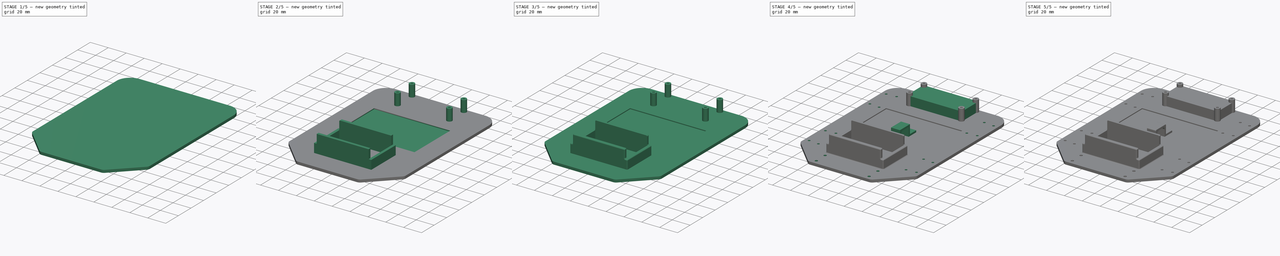
[diagram: build sequence overview — one tinted view per stage of 5, left to right]
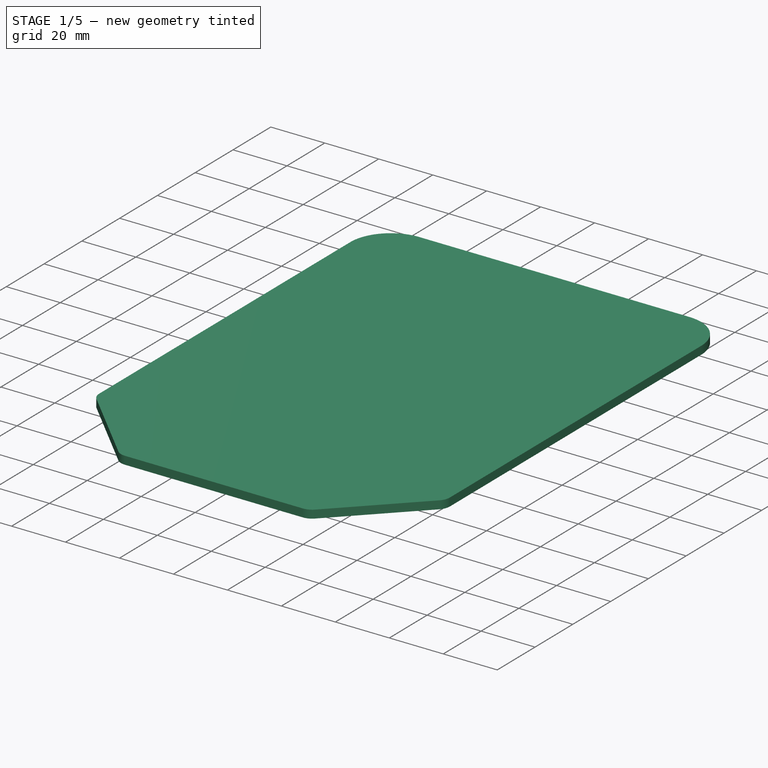
[diagram: stage 1 of 5 — iso view after this stage's code; geometry added in this stage tinted green]
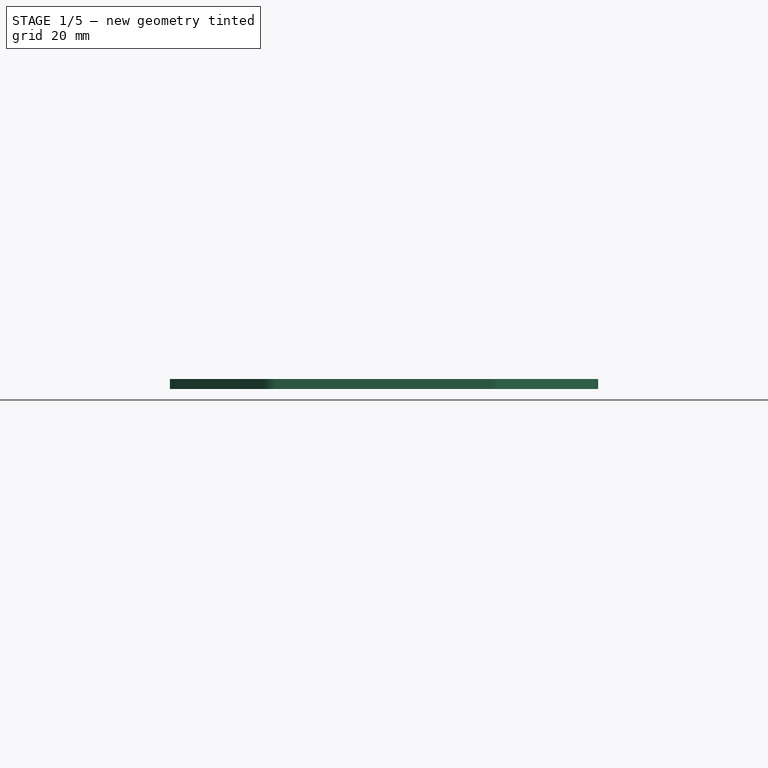
[diagram: stage 1 of 5 — front view after this stage's code; geometry added in this stage tinted green]
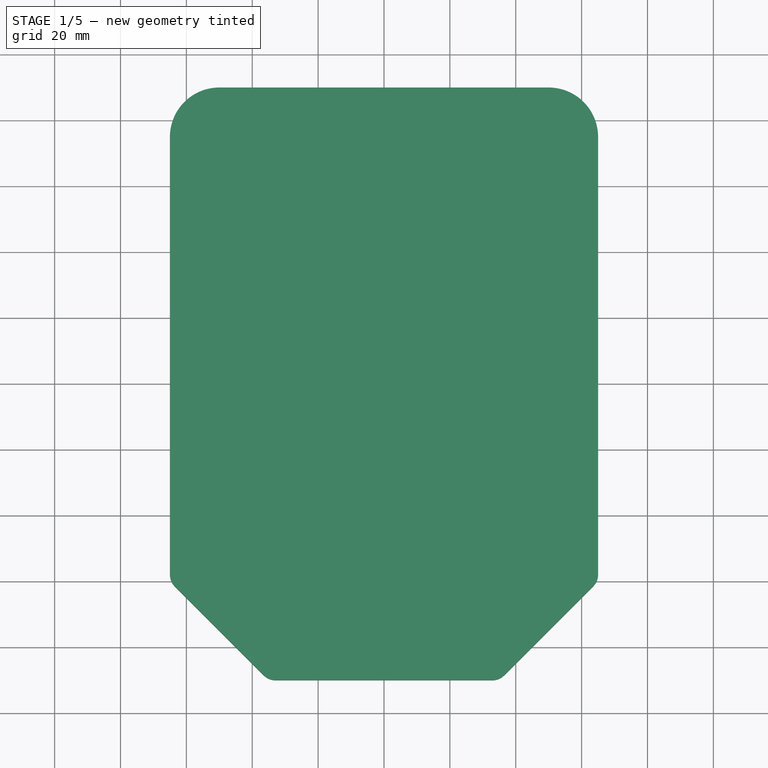
[diagram: stage 1 of 5 — top view after this stage's code; geometry added in this stage tinted green]
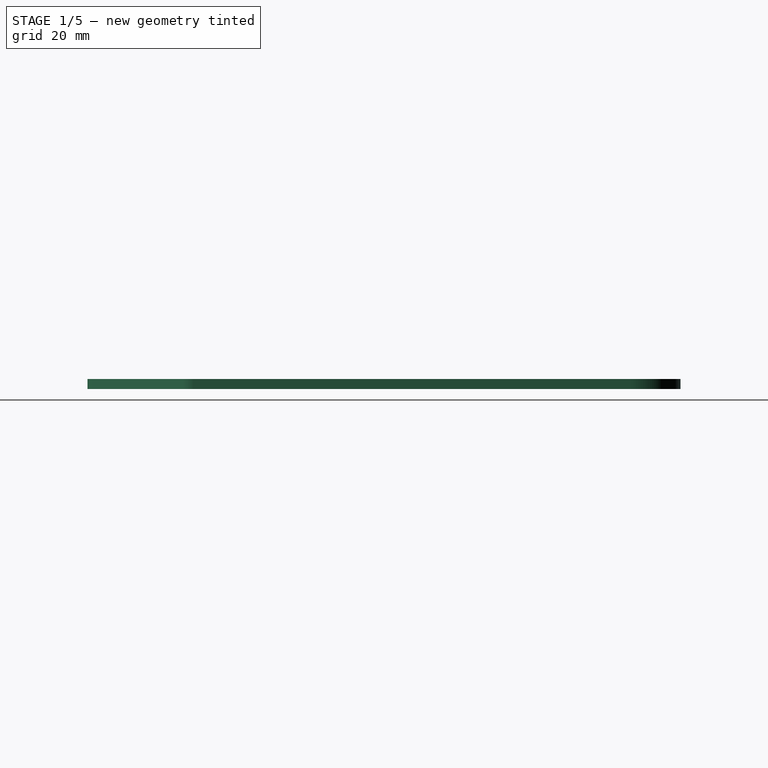
[diagram: stage 1 of 5 — right view after this stage's code; geometry added in this stage tinted green]
FCSTD DOCUMENT  (FreeCAD 0.18R4 (GitTag))
Label: mecanum-robot-base019
License: All rights reserved
LicenseURL: http://en.wikipedia.org/wiki/All_rights_reserved
objects: PartDesign::Fillet×26, Sketcher::SketchObject×14, PartDesign::Pocket×8, PartDesign::Pad×6, PartDesign::Body×3, PartDesign::Chamfer×2, PartDesign::FeatureBase×1
note: 74 computed .brp shape members not serialized (recipe doc carries the construction recipe); baked Part::Feature solids carry a one-line shape summary decoded from their .brp

FEATURE [Sketcher::SketchObject] Sketch
  MapMode = 5
  Support = -> [XY_Plane]
  sketch-geometry (4):
    g0: LineSegment StartX=-65 StartY=90 StartZ=0 EndX=65 EndY=90 EndZ=0
    g1: LineSegment StartX=65 StartY=90 StartZ=0 EndX=65 EndY=-90 EndZ=0
    g2: LineSegment StartX=65 StartY=-90 StartZ=0 EndX=-65 EndY=-90 EndZ=0
    g3: LineSegment StartX=-65 StartY=-90 StartZ=0 EndX=-65 EndY=90 EndZ=0
  constraints (10):
    c: Coincident(g0,g1)
    c: Coincident(g1,g2)
    c: Coincident(g2,g3)
    c: Coincident(g3,g0)
    c: Horizontal(g2)
    c: Vertical(g3)
    c: DistanceX(g0,g0) = 130
    c: DistanceY(g3,g3) = 180
    c: Symmetric(g0,g0,g-2)
    c: Symmetric(g0,g1,g-1)
FEATURE [PartDesign::Pad] Pad
  Length = 3
  Length2 = 100
  Profile = -> Sketch
  Type = 0
FEATURE [PartDesign::Chamfer] Chamfer
  Base = -> Pad [Edge5]
  BaseFeature = -> Pad
  Size = 30
FEATURE [PartDesign::Chamfer] Chamfer001
  Base = -> Chamfer [Edge15]
  BaseFeature = -> Chamfer
  Size = 30
FEATURE [PartDesign::Fillet] Fillet
  Base = -> Chamfer001 [Edge12]
  BaseFeature = -> Chamfer001
  Radius = 5
FEATURE [PartDesign::Fillet] Fillet001
  Base = -> Fillet [Edge9]
  BaseFeature = -> Fillet
  Radius = 5
FEATURE [PartDesign::Fillet] Fillet002
  Base = -> Fillet001 [Edge16]
  BaseFeature = -> Fillet001
  Radius = 5
FEATURE [PartDesign::Fillet] Fillet003
  Base = -> Fillet002 [Edge17]
  BaseFeature = -> Fillet002
  Radius = 5
FEATURE [PartDesign::Fillet] Fillet004
  Base = -> Fillet003 [Edge18]
  BaseFeature = -> Fillet003
  Radius = 15
FEATURE [PartDesign::Fillet] Fillet005
  Base = -> Fillet004 [Edge19]
  BaseFeature = -> Fillet004
  Radius = 15
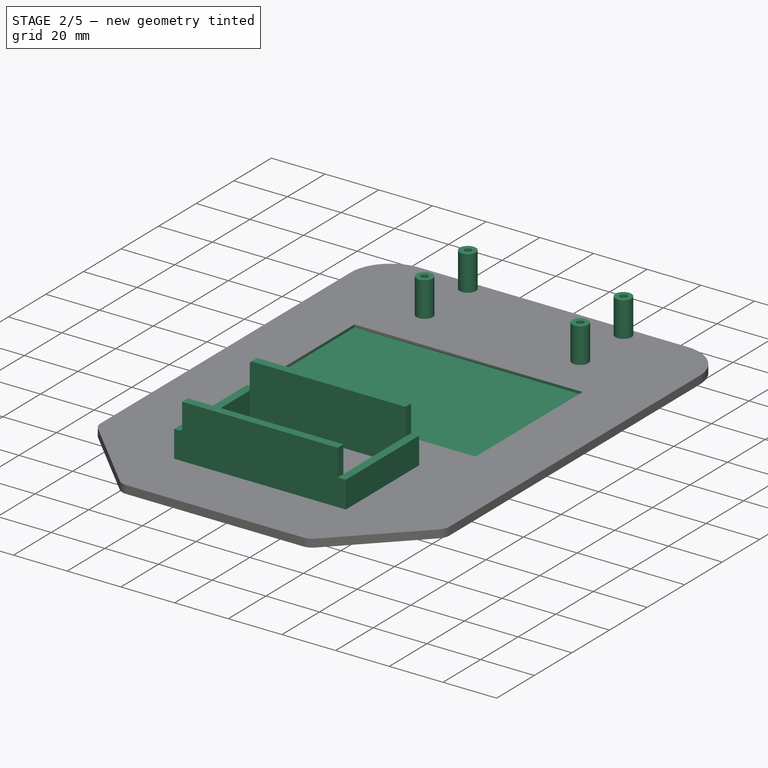
[diagram: stage 2 of 5 — iso view after this stage's code; geometry added in this stage tinted green]
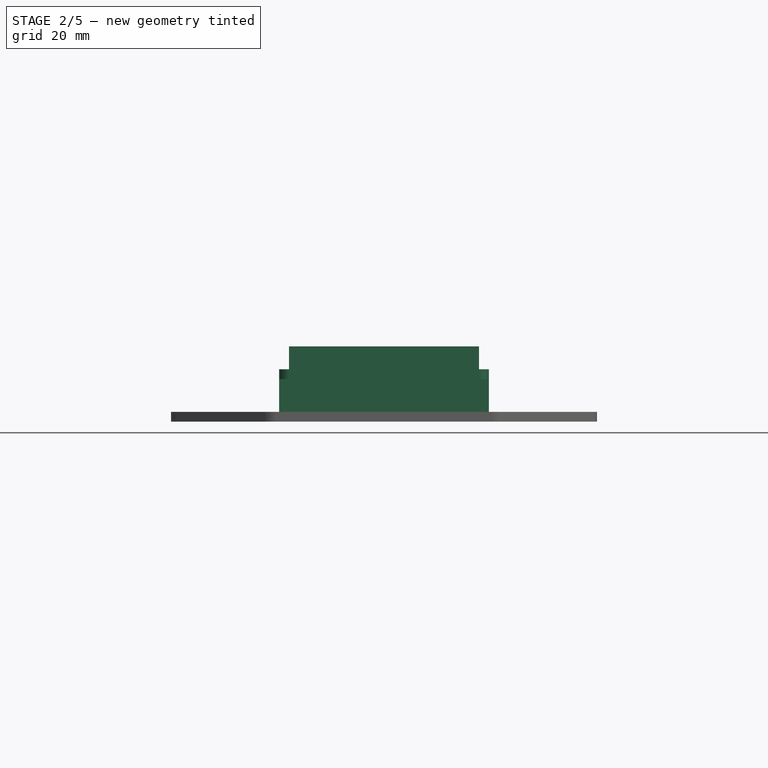
[diagram: stage 2 of 5 — front view after this stage's code; geometry added in this stage tinted green]
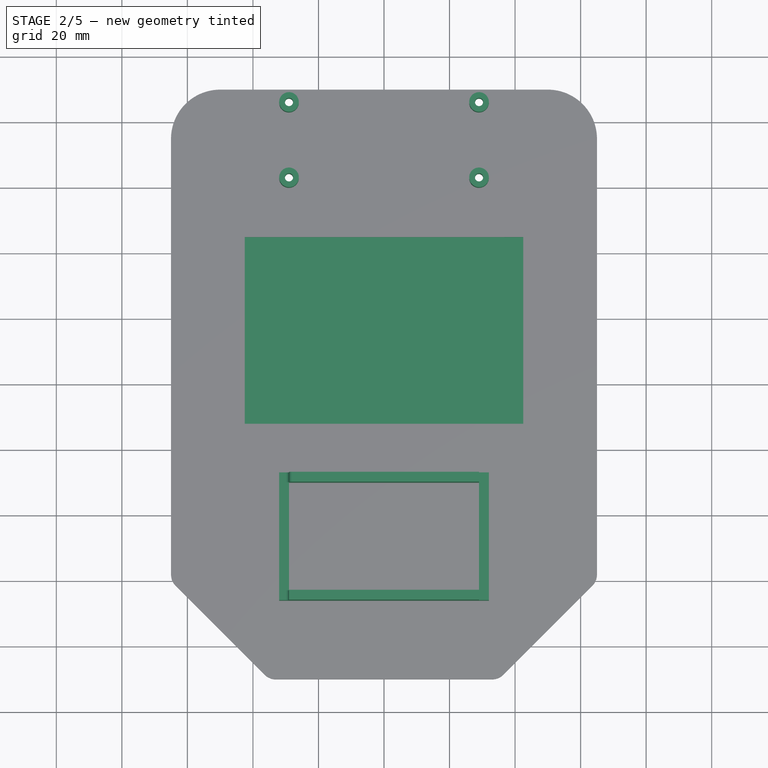
[diagram: stage 2 of 5 — top view after this stage's code; geometry added in this stage tinted green]
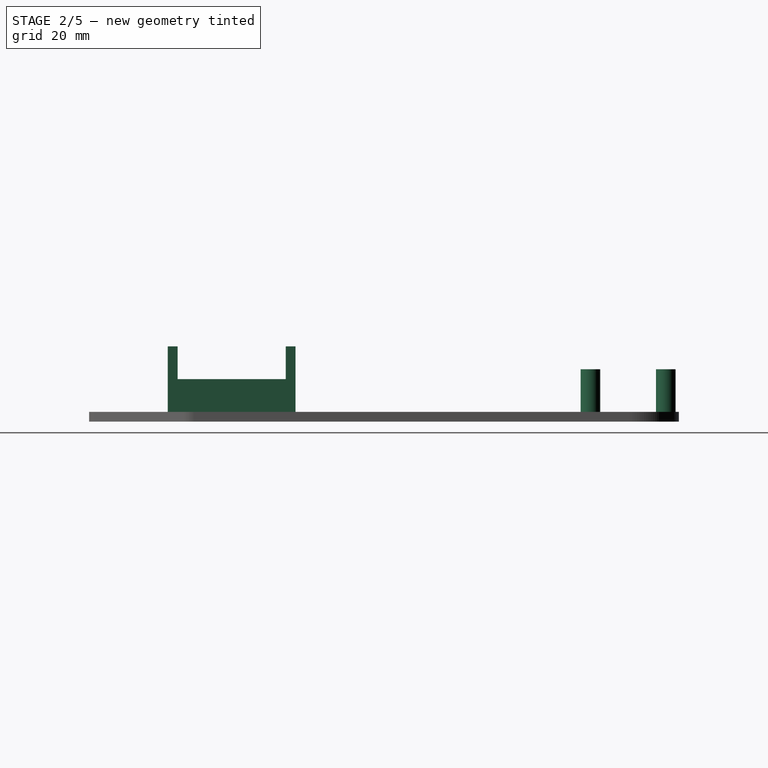
[diagram: stage 2 of 5 — right view after this stage's code; geometry added in this stage tinted green]
FEATURE [PartDesign::Body] Body003  label="Inner Bracket"
  Group = -> [Pad002,Fillet010,Fillet011,Fillet012,Sketch002,Pocket001]
  Origin = -> Origin003
  Placement = pos=(-54.6769,-34.7311,0) rot=(0,0,1;0rad)
  Tip = -> Pocket001
FEATURE [Sketcher::SketchObject] Sketch003  label="PiZero Stands"
  ExternalGeometry = -> [Fillet005]
  MapMode = 5
  Placement = pos=(0,0,3) rot=(0,0,1;0rad)
  Support = -> [Fillet005]
  sketch-geometry (4):
    g0: Circle CenterX=-29 CenterY=86 CenterZ=0 NormalX=0 NormalY=0 NormalZ=1 AngleXU=0 Radius=3
    g1: Circle CenterX=29 CenterY=86 CenterZ=0 NormalX=0 NormalY=0 NormalZ=1 AngleXU=0 Radius=3
    g2: Circle CenterX=-29 CenterY=63 CenterZ=0 NormalX=0 NormalY=0 NormalZ=1 AngleXU=0 Radius=3
    g3: Circle CenterX=29 CenterY=63 CenterZ=0 NormalX=0 NormalY=0 NormalZ=1 AngleXU=0 Radius=3
  constraints (11):
    c: Radius(g0) = 3
    c: Radius(g1) = 3
    c: Radius(g2) = 3
    c: Radius(g3) = 3
    c: DistanceX(g0,g1) = 58
    c: DistanceX(g2,g0) = 0
    c: DistanceX(g1,g3) = 0
    c: DistanceY(g3,g1) = 23
    c: DistanceY(g3,g2) = 0
    c: Symmetric(g0,g1,g-2)
    c: DistanceY(g0,g-3) = 4
FEATURE [PartDesign::Pad] Pad003  label="PAD - Pi Zero"
  BaseFeature = -> Fillet005
  Length = 13
  Length2 = 100
  Profile = -> Sketch003
  Type = 0
FEATURE [Sketcher::SketchObject] Sketch004  label="PiZero Holes"
  ExternalGeometry = -> [Pad003]
  MapMode = 5
  Placement = pos=(0,0,16) rot=(0,0,1;0rad)
  Support = -> [Pad003]
  sketch-geometry (4):
    g0: Circle CenterX=-29 CenterY=86 CenterZ=0 NormalX=0 NormalY=0 NormalZ=1 AngleXU=0 Radius=1.25
    g1: Circle CenterX=29 CenterY=86 CenterZ=0 NormalX=0 NormalY=0 NormalZ=1 AngleXU=0 Radius=1.25
    g2: Circle CenterX=29 CenterY=63 CenterZ=0 NormalX=0 NormalY=0 NormalZ=1 AngleXU=0 Radius=1.25
    g3: Circle CenterX=-29 CenterY=63 CenterZ=0 NormalX=0 NormalY=0 NormalZ=1 AngleXU=0 Radius=1.25
  constraints (11):
    c: Radius(g0) = 1.25
    c: Radius(g1) = 1.25
    c: Radius(g3) = 1.25
    c: Radius(g2) = 1.25
    c: DistanceY(g0,g-3) = 4
    c: DistanceX(g0,g1) = 58
    c: Symmetric(g1,g0,g-2)
    c: DistanceY(g2,g1) = 23
    c: DistanceX(g3,g0) = 0
    c: DistanceY(g2,g3) = 0
    c: DistanceX(g2,g1) = 0
FEATURE [PartDesign::Pocket] Pocket002
  BaseFeature = -> Pad003
  Length = 5
  Length2 = 100
  Profile = -> Sketch004
  Type = 1
FEATURE [Sketcher::SketchObject] Sketch005  label="Breadboard"
  ExternalGeometry = -> [Pocket002]
  MapMode = 5
  Placement = pos=(0,0,3) rot=(0,0,1;0rad)
  Support = -> [Pocket002]
  sketch-geometry (4):
    g0: LineSegment StartX=-42.5 StartY=45 StartZ=0 EndX=42.5 EndY=45 EndZ=0
    g1: LineSegment StartX=42.5 StartY=45 StartZ=0 EndX=42.5 EndY=-12 EndZ=0
    g2: LineSegment StartX=42.5 StartY=-12 StartZ=0 EndX=-42.5 EndY=-12 EndZ=0
    g3: LineSegment StartX=-42.5 StartY=-12 StartZ=0 EndX=-42.5 EndY=45 EndZ=0
  constraints (11):
    c: Coincident(g0,g1)
    c: Coincident(g1,g2)
    c: Coincident(g2,g3)
    c: Coincident(g3,g0)
    c: Horizontal(g2)
    c: Vertical(g1)
    c: Vertical(g3)
    c: Symmetric(g0,g0,g-2)
    c: DistanceY(g0,g-3) = 45
    c: DistanceY(g2,g0) = 57
    c: DistanceX(g0,g0) = 85
FEATURE [PartDesign::Pocket] Pocket003
  BaseFeature = -> Pocket002
  Length = 1
  Length2 = 100
  Profile = -> Sketch005
  Type = 0
FEATURE [Sketcher::SketchObject] Sketch006  label="battery walls large"
  ExternalGeometry = -> [Pocket003]
  MapMode = 5
  Placement = pos=(0,0,3) rot=(0,0,1;0rad)
  Support = -> [Pocket003]
  sketch-geometry (8):
    g0: LineSegment StartX=-29 StartY=-27 StartZ=0 EndX=29 EndY=-27 EndZ=0
    g1: LineSegment StartX=29 StartY=-27 StartZ=0 EndX=29 EndY=-30 EndZ=0
    g2: LineSegment StartX=29 StartY=-30 StartZ=0 EndX=-29 EndY=-30 EndZ=0
    g3: LineSegment StartX=-29 StartY=-30 StartZ=0 EndX=-29 EndY=-27 EndZ=0
    g4: LineSegment StartX=-29 StartY=-66 StartZ=0 EndX=29 EndY=-66 EndZ=0
    g5: LineSegment StartX=29 StartY=-66 StartZ=0 EndX=29 EndY=-63 EndZ=0
    g6: LineSegment StartX=29 StartY=-63 StartZ=0 EndX=-29 EndY=-63 EndZ=0
    g7: LineSegment StartX=-29 StartY=-63 StartZ=0 EndX=-29 EndY=-66 EndZ=0
  constraints (23):
    c: Coincident(g0,g1)
    c: Coincident(g1,g2)
    c: Coincident(g2,g3)
    c: Coincident(g3,g0)
    c: Horizontal(g2)
    c: Vertical(g1)
    c: Vertical(g3)
    c: Symmetric(g0,g0,g-2)
    c: DistanceY(g1,g0) = 3
    c: DistanceY(g0,g-3) = 15
    c: DistanceX(g2,g2) = 58
    c: Coincident(g4,g5)
    c: Coincident(g5,g6)
    c: Coincident(g6,g7)
    c: Coincident(g7,g4)
    c: Horizontal(g4)
    c: Horizontal(g6)
    c: Vertical(g5)
    c: Vertical(g7)
    c: DistanceX(g4,g2) = 0
    c: DistanceY(g6,g2) = 33
    c: DistanceY(g4,g5) = 3
    c: DistanceX(g1,g5) = 0
FEATURE [PartDesign::Pad] Pad004
  BaseFeature = -> Pocket003
  Length = 20
  Length2 = 100
  Profile = -> Sketch006
  Type = 0
FEATURE [Sketcher::SketchObject] Sketch007  label="battery walls ends"
  ExternalGeometry = -> [Pad004]
  MapMode = 5
  Placement = pos=(0,0,3) rot=(0,0,1;0rad)
  Support = -> [Pad004]
  sketch-geometry (8):
    g0: LineSegment StartX=29 StartY=-27 StartZ=0 EndX=32 EndY=-27 EndZ=0
    g1: LineSegment StartX=32 StartY=-27 StartZ=0 EndX=32 EndY=-66 EndZ=0
    g2: LineSegment StartX=32 StartY=-66 StartZ=0 EndX=29 EndY=-66 EndZ=0
    g3: LineSegment StartX=29 StartY=-66 StartZ=0 EndX=29 EndY=-27 EndZ=0
    g4: LineSegment StartX=-29 StartY=-27 StartZ=0 EndX=-32 EndY=-27 EndZ=0
    g5: LineSegment StartX=-32 StartY=-27 StartZ=0 EndX=-32 EndY=-66 EndZ=0
    g6: LineSegment StartX=-32 StartY=-66 StartZ=0 EndX=-29 EndY=-66 EndZ=0
    g7: LineSegment StartX=-29 StartY=-66 StartZ=0 EndX=-29 EndY=-27 EndZ=0
  constraints (20):
    c: Coincident(g0,g1)
    c: Coincident(g1,g2)
    c: Coincident(g2,g3)
    c: Coincident(g3,g0)
    c: Horizontal(g0)
    c: Horizontal(g2)
    c: Vertical(g1)
    c: Coincident(g4,g5)
    c: Coincident(g5,g6)
    c: Coincident(g6,g7)
    c: Coincident(g7,g4)
    c: Horizontal(g4)
    c: Horizontal(g6)
    c: Vertical(g5)
    c: Coincident(g4,g-3)
    c: Coincident(g-4,g6)
    c: Coincident(g-3,g0)
    c: Coincident(g-4,g2)
    c: DistanceX(g5,g6) = 3
    c: DistanceX(g2,g2) = 3
FEATURE [PartDesign::Pad] Pad005
  BaseFeature = -> Pad004
  Length = 10
  Length2 = 100
  Profile = -> Sketch007
  Type = 0
FEATURE [PartDesign::Fillet] Fillet013
  Base = -> Pad005 [Edge101]
  BaseFeature = -> Pad005
  Radius = 1
FEATURE [PartDesign::Fillet] Fillet014
  Base = -> Fillet013 [Edge56]
  BaseFeature = -> Fillet013
  Radius = 1
FEATURE [PartDesign::Fillet] Fillet015
  Base = -> Fillet014 [Edge75]
  BaseFeature = -> Fillet014
  Radius = 1
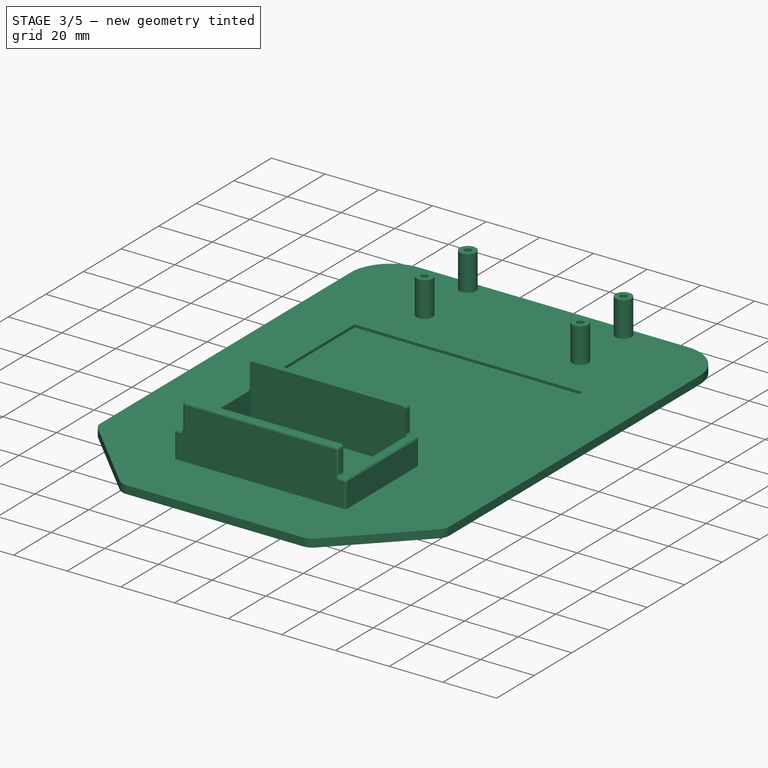
[diagram: stage 3 of 5 — iso view after this stage's code; geometry added in this stage tinted green]
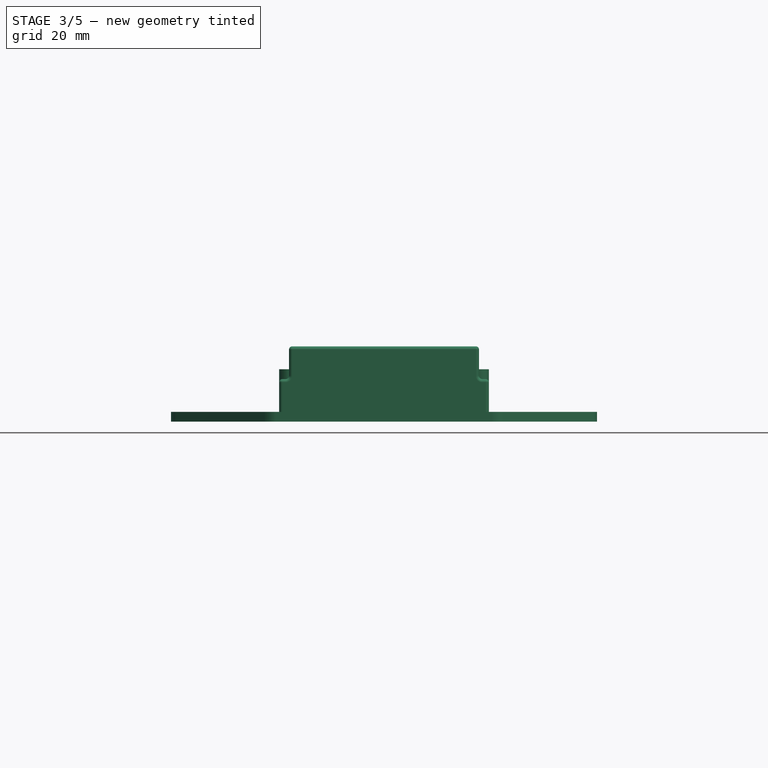
[diagram: stage 3 of 5 — front view after this stage's code; geometry added in this stage tinted green]
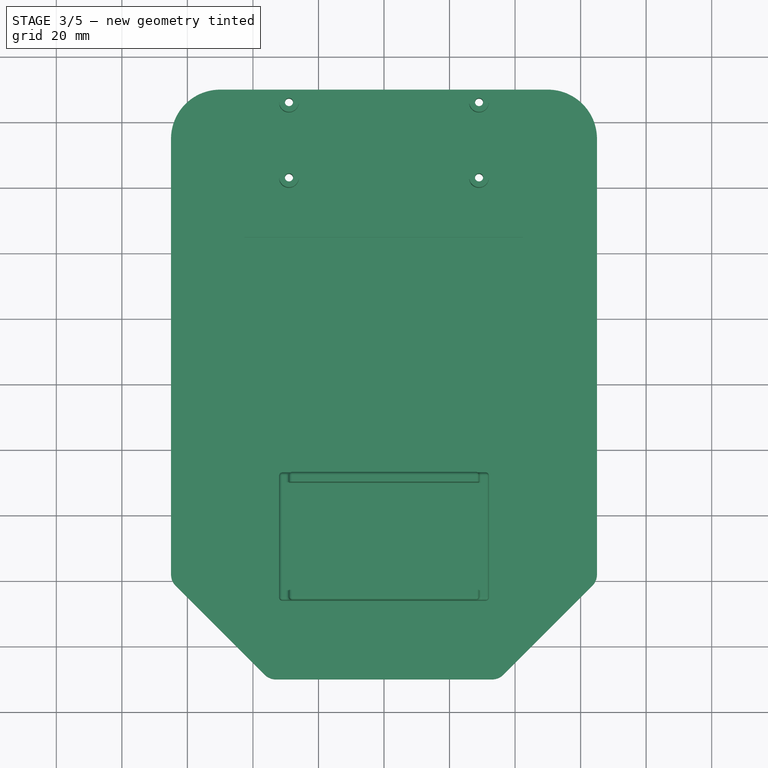
[diagram: stage 3 of 5 — top view after this stage's code; geometry added in this stage tinted green]
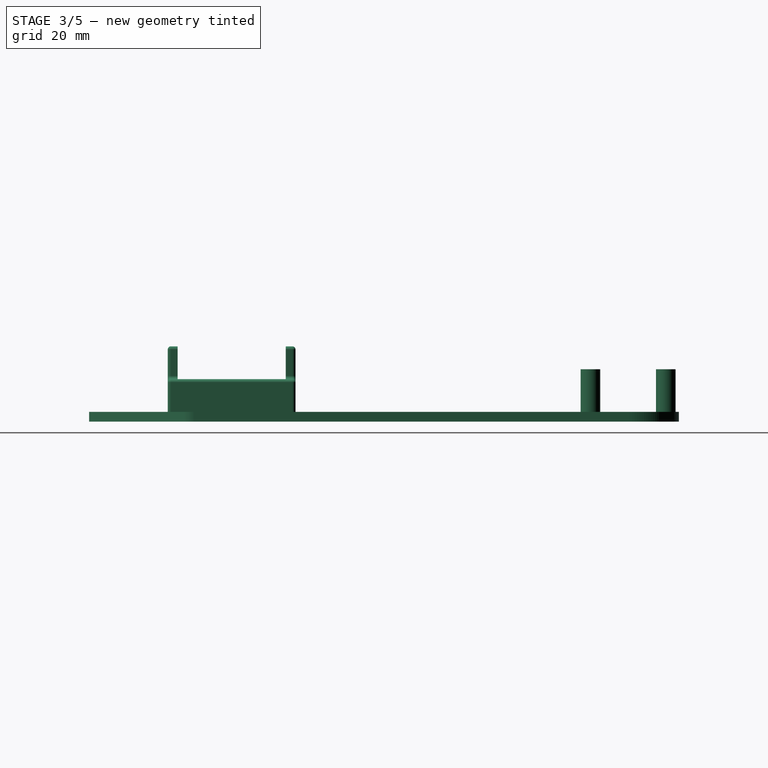
[diagram: stage 3 of 5 — right view after this stage's code; geometry added in this stage tinted green]
FEATURE [PartDesign::Fillet] Fillet016
  Base = -> Fillet015 [Edge83]
  BaseFeature = -> Fillet015
  Radius = 1
FEATURE [PartDesign::Fillet] Fillet017
  Base = -> Fillet016 [Edge20]
  BaseFeature = -> Fillet016
  Radius = 1
FEATURE [PartDesign::Fillet] Fillet018
  Base = -> Fillet017 [Edge20]
  BaseFeature = -> Fillet017
  Radius = 1
FEATURE [PartDesign::Fillet] Fillet019
  Base = -> Fillet018 [Edge16]
  BaseFeature = -> Fillet018
  Radius = 1
FEATURE [PartDesign::Fillet] Fillet020
  Base = -> Fillet019 [Edge81]
  BaseFeature = -> Fillet019
  Radius = 1
FEATURE [PartDesign::Fillet] Fillet021
  Base = -> Fillet020 [Edge24]
  BaseFeature = -> Fillet020
  Radius = 1
FEATURE [PartDesign::Fillet] Fillet022
  Base = -> Fillet021 [Edge3]
  BaseFeature = -> Fillet021
  Radius = 1
FEATURE [PartDesign::Fillet] Fillet023
  Base = -> Fillet022 [Edge80]
  BaseFeature = -> Fillet022
  Radius = 1
FEATURE [PartDesign::Fillet] Fillet024
  Base = -> Fillet023 [Edge55]
  BaseFeature = -> Fillet023
  Radius = 1
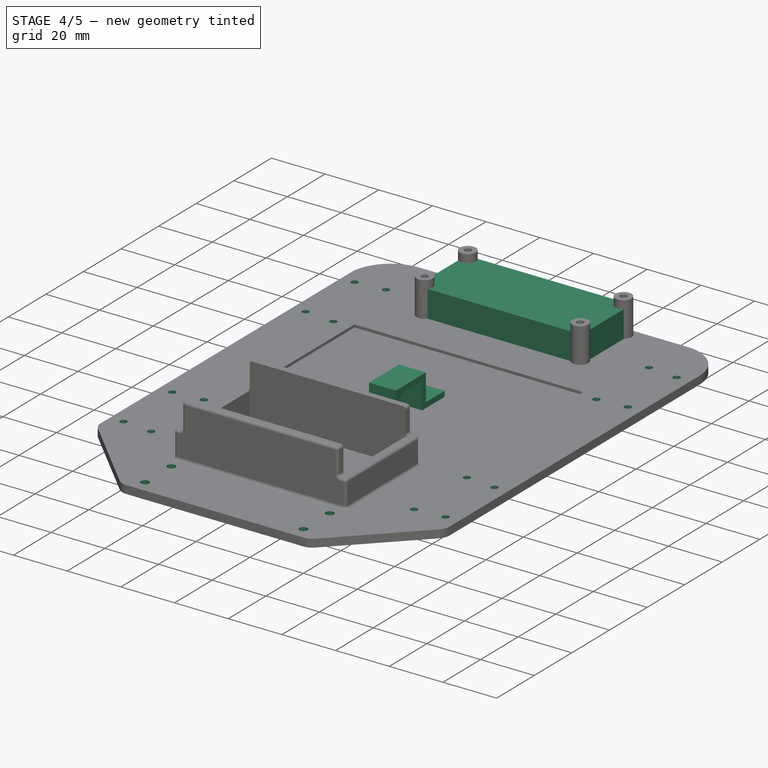
[diagram: stage 4 of 5 — iso view after this stage's code; geometry added in this stage tinted green]
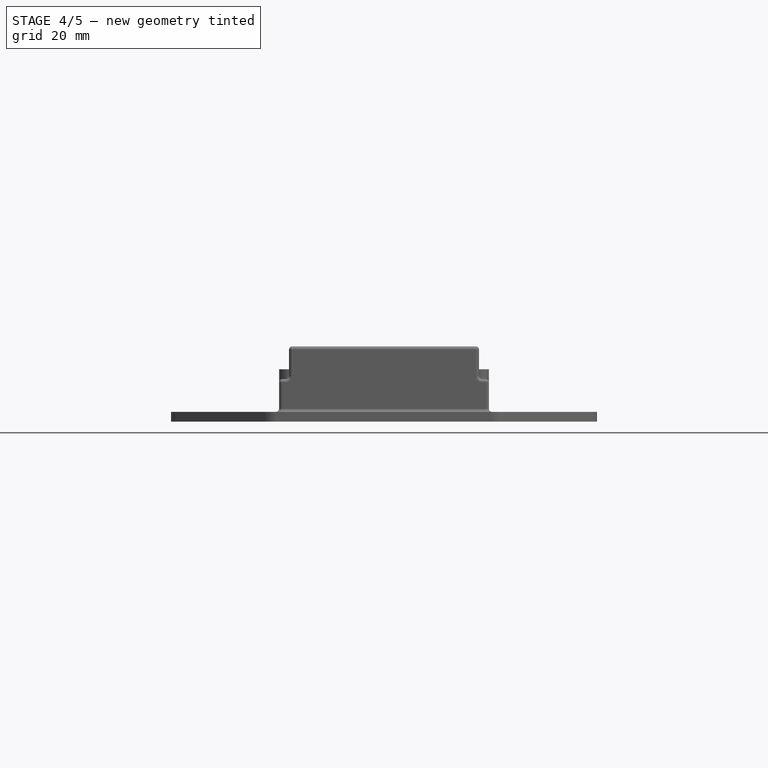
[diagram: stage 4 of 5 — front view after this stage's code; geometry added in this stage tinted green]
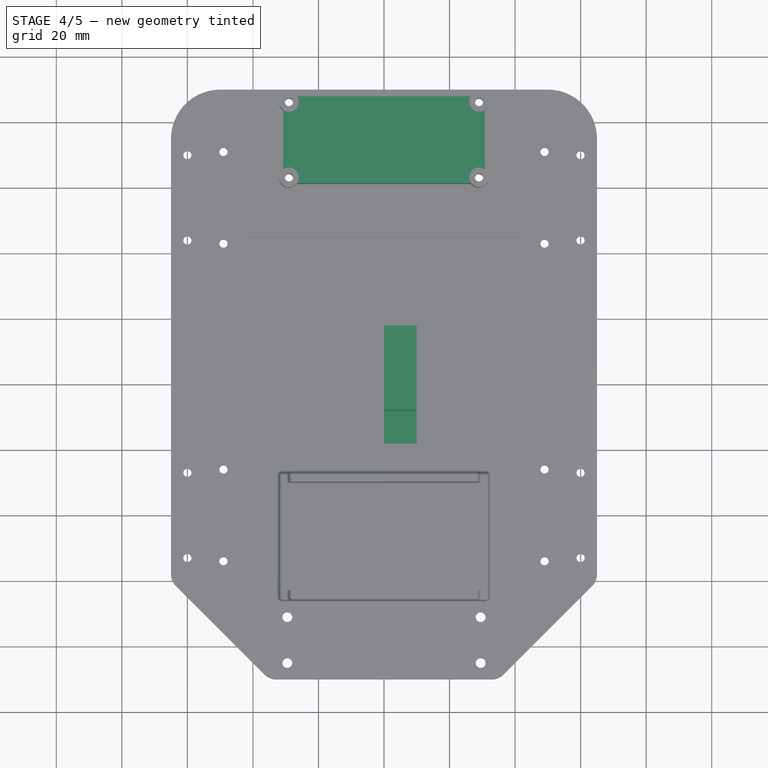
[diagram: stage 4 of 5 — top view after this stage's code; geometry added in this stage tinted green]
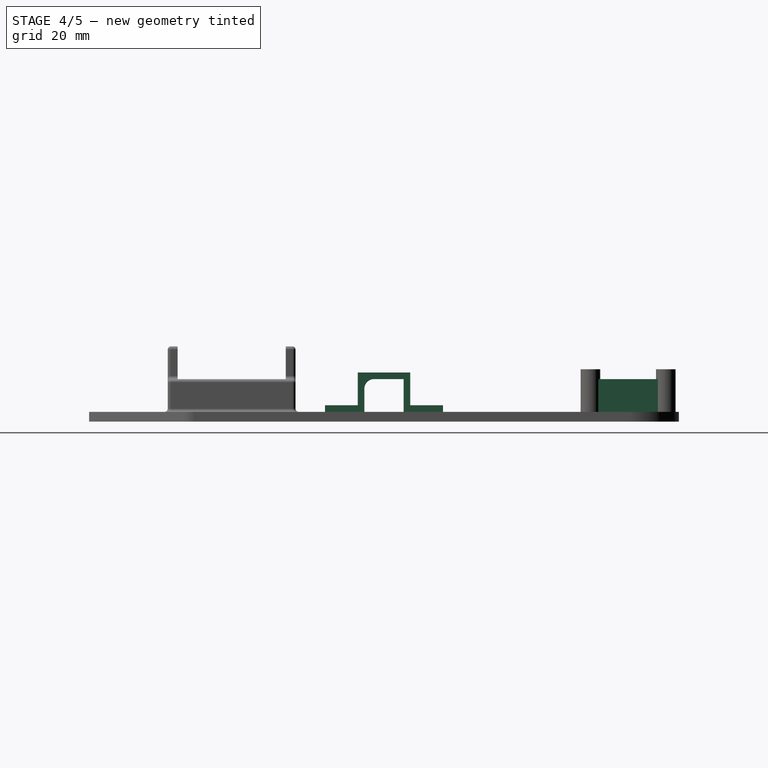
[diagram: stage 4 of 5 — right view after this stage's code; geometry added in this stage tinted green]
FEATURE [Sketcher::SketchObject] CopyCopySketch004
  Placement = pos=(0,0,0) rot=(0.57735,0.57735,0.57735;2.0944rad)
  sketch-geometry (12):
    g0: LineSegment StartX=-6 StartY=3 StartZ=0 EndX=-6 EndY=13 EndZ=0
    g1: LineSegment StartX=-6 StartY=13 StartZ=0 EndX=6 EndY=13 EndZ=0
    g2: LineSegment StartX=6 StartY=13 StartZ=0 EndX=6 EndY=3 EndZ=0
    g3: LineSegment StartX=6 StartY=3 StartZ=0 EndX=18 EndY=3 EndZ=0
    g4: LineSegment StartX=8 StartY=5 StartZ=0 EndX=8 EndY=15 EndZ=0
    g5: LineSegment StartX=8 StartY=15 StartZ=0 EndX=-8 EndY=15 EndZ=0
    g6: LineSegment StartX=-8 StartY=15 StartZ=0 EndX=-8 EndY=5 EndZ=0
    g7: LineSegment StartX=-18 StartY=3 StartZ=0 EndX=-6 EndY=3 EndZ=0
    g8: LineSegment StartX=18 StartY=3 StartZ=0 EndX=18 EndY=5 EndZ=0
    g9: LineSegment StartX=18 StartY=5 StartZ=0 EndX=8 EndY=5 EndZ=0
    g10: LineSegment StartX=-8 StartY=5 StartZ=0 EndX=-18 EndY=5 EndZ=0
    g11: LineSegment StartX=-18 StartY=5 StartZ=0 EndX=-18 EndY=3 EndZ=0
  constraints (34):
    c: Coincident(g0,g1)
    c: Coincident(g1,g2)
    c: Coincident(g2,g3)
    c: Coincident(g4,g5)
    c: Coincident(g5,g6)
    c: Coincident(g0,g7)
    c: Horizontal(g7)
    c: Horizontal(g3)
    c: Symmetric(g0,g2,g-2)
    c: Vertical(g2)
    c: Vertical(g0)
    c: Vertical(g6)
    c: Vertical(g4)
    c: Symmetric(g5,g4,g-2)
    c: Horizontal(g1)
    c: Coincident(g8,g9)
    c: Coincident(g10,g11)
    c: Coincident(g7,g11)
    c: Coincident(g3,g8)
    c: DistanceY(g-1,g0) = 3
    c: Vertical(g11)
    c: DistanceX(g1,g1) = 12
    c: DistanceX(g1,g4) = 2
    c: DistanceY(g1,g4) = 2
    c: Coincident(g10,g6)
    c: Coincident(g4,g9)
    c: Equal(g10,g9)
    c: DistanceY(g7,g10) = 2
    c: Vertical(g8)
    c: DistanceY(g3,g8) = 2
    c: Horizontal(g9)
    c: DistanceX(g9,g9) = 10
    c: DistanceY(g0,g0) = 10
    c: Horizontal(g10)
FEATURE [PartDesign::Pad] Pad002
  Length = 10
  Length2 = 100
  Placement = pos=(0,0,0) rot=(0.57735,0.57735,0.57735;2.0944rad)
  Profile = -> CopyCopySketch004
  Type = 0
FEATURE [PartDesign::Fillet] Fillet010
  Base = -> Pad002 [Edge2]
  BaseFeature = -> Pad002
  Placement = pos=(0,0,0) rot=(0.57735,0.57735,0.57735;2.0944rad)
  Radius = 3
FEATURE [PartDesign::Fillet] Fillet025
  Base = -> Fillet024 [Edge53]
  BaseFeature = -> Fillet024
  Radius = 1
FEATURE [Sketcher::SketchObject] Sketch008  label="Motor connector holes"
  ExternalGeometry = -> [Fillet025]
  MapMode = 5
  Placement = pos=(0,0,3) rot=(0,0,1;0rad)
  Support = -> [Fillet025]
  sketch-geometry (16):
    g0: Circle CenterX=-60 CenterY=-52.9289 CenterZ=0 NormalX=0 NormalY=0 NormalZ=1 AngleXU=0 Radius=1.25
    g1: Circle CenterX=-49 CenterY=-53.9289 CenterZ=0 NormalX=0 NormalY=0 NormalZ=1 AngleXU=0 Radius=1.25
    g2: Circle CenterX=-60 CenterY=-26.9289 CenterZ=0 NormalX=0 NormalY=0 NormalZ=1 AngleXU=0 Radius=1.25
    g3: Circle CenterX=-49 CenterY=-25.9289 CenterZ=0 NormalX=0 NormalY=0 NormalZ=1 AngleXU=0 Radius=1.25
    g4: Circle CenterX=60 CenterY=-52.9289 CenterZ=0 NormalX=0 NormalY=0 NormalZ=1 AngleXU=0 Radius=1.25
    g5: Circle CenterX=49 CenterY=-53.9289 CenterZ=0 NormalX=0 NormalY=0 NormalZ=1 AngleXU=0 Radius=1.25
    g6: Circle CenterX=60 CenterY=-26.9289 CenterZ=0 NormalX=0 NormalY=0 NormalZ=1 AngleXU=0 Radius=1.25
    g7: Circle CenterX=49 CenterY=-25.9289 CenterZ=0 NormalX=0 NormalY=0 NormalZ=1 AngleXU=0 Radius=1.25
    g8: Circle CenterX=-60 CenterY=70 CenterZ=0 NormalX=0 NormalY=0 NormalZ=1 AngleXU=0 Radius=1.25
    g9: Circle CenterX=-49 CenterY=71 CenterZ=0 NormalX=0 NormalY=0 NormalZ=1 AngleXU=0 Radius=1.25
    g10: Circle CenterX=-49 CenterY=43 CenterZ=0 NormalX=0 NormalY=0 NormalZ=1 AngleXU=0 Radius=1.25
    g11: Circle CenterX=-60 CenterY=44 CenterZ=0 NormalX=0 NormalY=0 NormalZ=1 AngleXU=0 Radius=1.25
    g12: Circle CenterX=60 CenterY=70 CenterZ=0 NormalX=0 NormalY=0 NormalZ=1 AngleXU=0 Radius=1
    g13: Circle CenterX=60 CenterY=44 CenterZ=0 NormalX=0 NormalY=0 NormalZ=1 AngleXU=0 Radius=1
    g14: Circle CenterX=49 CenterY=71 CenterZ=0 NormalX=0 NormalY=0 NormalZ=1 AngleXU=0 Radius=1.25
    g15: Circle CenterX=49 CenterY=43 CenterZ=0 NormalX=0 NormalY=0 NormalZ=1 AngleXU=0 Radius=1
  constraints (48):
    c: Radius(g2) = 1.25
    c: Radius(g0) = 1.25
    c: Radius(g1) = 1.25
    c: Radius(g3) = 1.25
    c: DistanceX(g-3,g0) = 5
    c: DistanceY(g-3,g0) = 5
    c: DistanceX(g0,g1) = 11
    c: DistanceY(g-3,g1) = 4
    c: DistanceY(g1,g3) = 28
    c: DistanceX(g3,g1) = 0
    c: DistanceX(g2,g0) = 0
    c: DistanceY(g0,g2) = 26
    c: Radius(g6) = 1.25
    c: Radius(g7) = 1.25
    c: Radius(g5) = 1.25
    c: Radius(g4) = 1.25
    c: DistanceX(g4,g-4) = 5
    c: DistanceY(g-4,g4) = 5
    c: DistanceX(g6,g4) = 0
    c: DistanceY(g4,g6) = 26
    c: DistanceY(g5,g7) = 28
    c: DistanceY(g5,g-4) = -4
    c: DistanceX(g7,g5) = 0
    c: DistanceX(g7,g6) = 11
    c: Radius(g8) = 1.25
    c: Radius(g9) = 1.25
    c: Radius(g11) = 1.25
    c: Radius(g10) = 1.25
    c: DistanceY(g8,g-3) = 5
    c: DistanceY(g9,g-3) = 4
    c: DistanceX(g-3,g8) = 5
    c: DistanceX(g8,g9) = 11
    c: DistanceX(g8,g11) = 0
    c: DistanceX(g9,g10) = 0
    c: DistanceY(g11,g8) = 26
    c: DistanceY(g10,g9) = 28
    c: Radius(g12) = 1
    c: Radius(g13) = 1
    c: Radius(g15) = 1
    c: Radius(g14) = 1.25
    c: DistanceY(g12,g-4) = 5
    c: DistanceY(g14,g-4) = 4
    c: DistanceX(g12,g-4) = 5
    c: DistanceX(g14,g12) = 11
    c: DistanceX(g13,g12) = 0
    c: DistanceX(g15,g14) = 0
    c: DistanceY(g13,g12) = 26
    c: DistanceY(g15,g14) = 28
FEATURE [PartDesign::Pocket] Pocket004
  BaseFeature = -> Fillet025
  Length = 5
  Length2 = 100
  Profile = -> Sketch008
  Type = 1
FEATURE [Sketcher::SketchObject] Sketch009  label="sensor"
  ExternalGeometry = -> [Pocket004]
  MapMode = 5
  Placement = pos=(0,0,3) rot=(0,0,1;0rad)
  Support = -> [Pocket004]
  sketch-geometry (4):
    g0: Circle CenterX=29.5 CenterY=-71 CenterZ=0 NormalX=0 NormalY=0 NormalZ=1 AngleXU=0 Radius=1.5
    g1: Circle CenterX=-29.5 CenterY=-71 CenterZ=0 NormalX=0 NormalY=0 NormalZ=1 AngleXU=0 Radius=1.5
    g2: Circle CenterX=-29.5 CenterY=-85 CenterZ=0 NormalX=0 NormalY=0 NormalZ=1 AngleXU=0 Radius=1.5
    g3: Circle CenterX=29.5 CenterY=-85 CenterZ=0 NormalX=0 NormalY=0 NormalZ=1 AngleXU=0 Radius=1.5
  constraints (11):
    c: DistanceX(g1,g0) = 59
    c: Symmetric(g1,g0,g-2)
    c: Radius(g0) = 1.5
    c: Radius(g1) = 1.5
    c: DistanceY(g-3,g0) = 19
    c: Radius(g3) = 1.5
    c: Radius(g2) = 1.5
    c: DistanceX(g0,g3) = 0
    c: DistanceX(g2,g1) = 0
    c: DistanceY(g-3,g3) = 5
    c: DistanceY(g3,g2) = 0
FEATURE [PartDesign::Pocket] Pocket005
  BaseFeature = -> Pocket004
  Length = 5
  Length2 = 100
  Profile = -> Sketch009
  Type = 1
FEATURE [Sketcher::SketchObject] Sketch010  label="support under pi"
  ExternalGeometry = -> [Pocket005]
  MapMode = 5
  Placement = pos=(0,0,3) rot=(0,0,1;0rad)
  Support = -> [Pocket005]
  sketch-geometry (4):
    g0: LineSegment StartX=30.8 StartY=87.8 StartZ=0 EndX=-30.8 EndY=87.8 EndZ=0
    g1: LineSegment StartX=-30.8 StartY=87.8 StartZ=0 EndX=-30.8 EndY=61.2 EndZ=0
    g2: LineSegment StartX=-30.8 StartY=61.2 StartZ=0 EndX=30.8 EndY=61.2 EndZ=0
    g3: LineSegment StartX=30.8 StartY=61.2 StartZ=0 EndX=30.8 EndY=87.8 EndZ=0
  constraints (12):
    c: Coincident(g0,g1)
    c: Coincident(g1,g2)
    c: Coincident(g2,g3)
    c: Coincident(g3,g0)
    c: Horizontal(g0)
    c: Horizontal(g2)
    c: Vertical(g1)
    c: Vertical(g3)
    c: DistanceX(g0,g-4) = -1.8
    c: DistanceX(g-5,g0) = -1.8
    c: DistanceY(g0,g-4) = -1.8
    c: DistanceY(g-3,g2) = -1.8
FEATURE [PartDesign::Pad] Pad006
  BaseFeature = -> Pocket005
  Length = 10
  Length2 = 100
  Profile = -> Sketch010
  Type = 0
FEATURE [Sketcher::SketchObject] Sketch011  label="pi drill holes 2"
  ExternalGeometry = -> [Pad006]
  MapMode = 5
  Placement = pos=(0,0,16) rot=(0,0,1;0rad)
  Support = -> [Pad006]
  sketch-geometry (4):
    g0: Circle CenterX=-29 CenterY=86 CenterZ=0 NormalX=0 NormalY=0 NormalZ=1 AngleXU=0 Radius=1.25
    g1: Circle CenterX=29 CenterY=86 CenterZ=0 NormalX=0 NormalY=0 NormalZ=1 AngleXU=0 Radius=1.25
    g2: Circle CenterX=29 CenterY=63 CenterZ=0 NormalX=0 NormalY=0 NormalZ=1 AngleXU=0 Radius=1.25
    g3: Circle CenterX=-29 CenterY=63 CenterZ=0 NormalX=0 NormalY=0 NormalZ=1 AngleXU=0 Radius=1.25
  constraints (8):
    c: Radius(g0) = 1.25
    c: Radius(g3) = 1.25
    c: Radius(g1) = 1.25
    c: Radius(g2) = 1.25
    c: DistanceX(g0,g3) = 0
    c: DistanceX(g1,g2) = 0
    c: DistanceY(g3,g2) = 0
    c: DistanceY(g1,g0) = 0
FEATURE [PartDesign::Pocket] Pocket006
  BaseFeature = -> Pad006
  Length = 5
  Length2 = 100
  Profile = -> Sketch011
  Type = 1
FEATURE [Sketcher::SketchObject] Sketch012  label="drill bracket holes"
  ExternalGeometry = -> [Pocket006]
  MapMode = 5
  Placement = pos=(0,0,3) rot=(0,0,1;0rad)
  Support = -> [Pocket006]
  sketch-geometry (3):
    g0: Circle CenterX=60 CenterY=70 CenterZ=0 NormalX=0 NormalY=0 NormalZ=1 AngleXU=0 Radius=1.25
    g1: Circle CenterX=60 CenterY=44 CenterZ=0 NormalX=0 NormalY=0 NormalZ=1 AngleXU=0 Radius=1.25
    g2: Circle CenterX=49 CenterY=43 CenterZ=0 NormalX=0 NormalY=0 NormalZ=1 AngleXU=0 Radius=1.25
  constraints (6):
    c: Coincident(g0,g-5)
    c: Coincident(g1,g-3)
    c: Coincident(g2,g-4)
    c: Radius(g0) = 1.25
    c: Radius(g2) = 1.25
    c: Radius(g1) = 1.25
FEATURE [PartDesign::Pocket] Pocket007
  BaseFeature = -> Pocket006
  Length = 5
  Length2 = 100
  Profile = -> Sketch012
  Type = 1
FEATURE [PartDesign::Body] Body
  Group = -> [Sketch,Pad,Chamfer,Chamfer001,Fillet,Fillet001,Fillet002,Fillet003,Fillet004,Fillet005,Sketch003,Pad003,Sketch004,Pocket002,Sketch005,Pocket003,Sketch006,Pad004,Sketch007,Pad005,Fillet013,Fillet014,Fillet015,Fillet016,Fillet017,Fillet018,Fillet019,Fillet020,Fillet021,Fillet022,Fillet023,Fillet024,Fillet025,Sketch008,Pocket004,Sketch009,Pocket005,Sketch010,Pad006,Sketch011,Pocket006,Sketch012,+1 more]
  Origin = -> Origin
  Tip = -> Pocket007
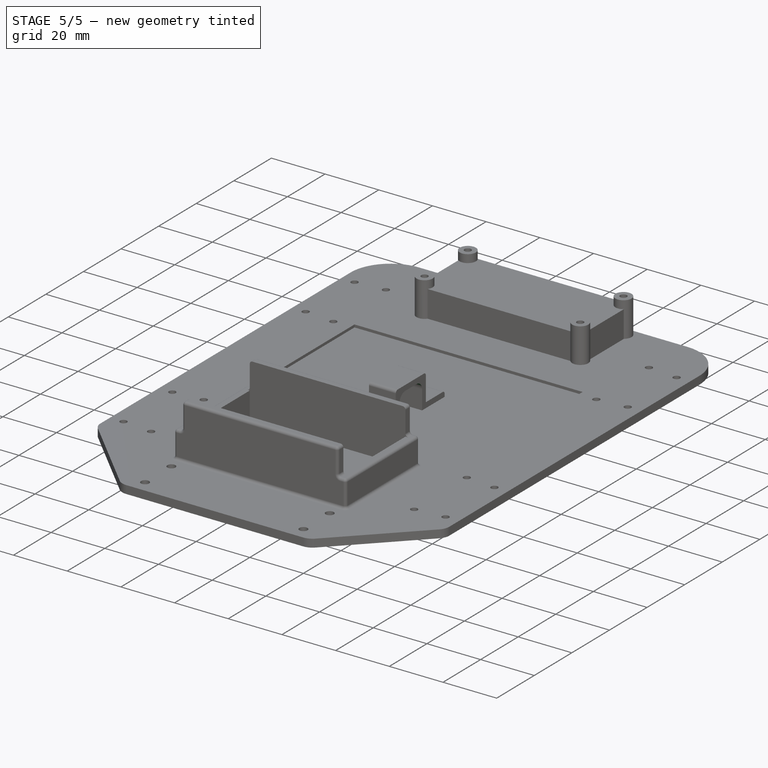
[diagram: stage 5 of 5 — iso view after this stage's code; geometry added in this stage tinted green]
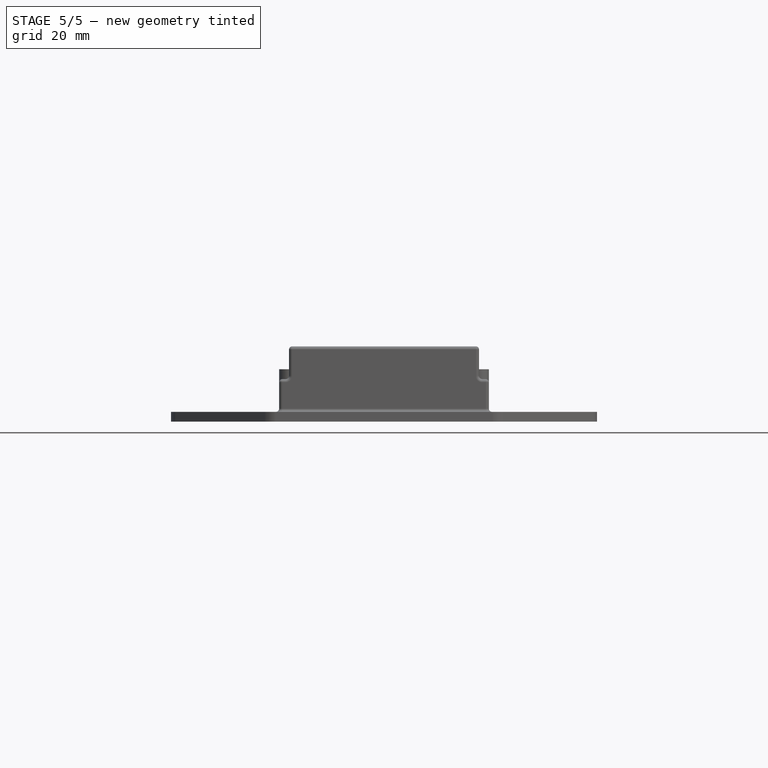
[diagram: stage 5 of 5 — front view after this stage's code; geometry added in this stage tinted green]
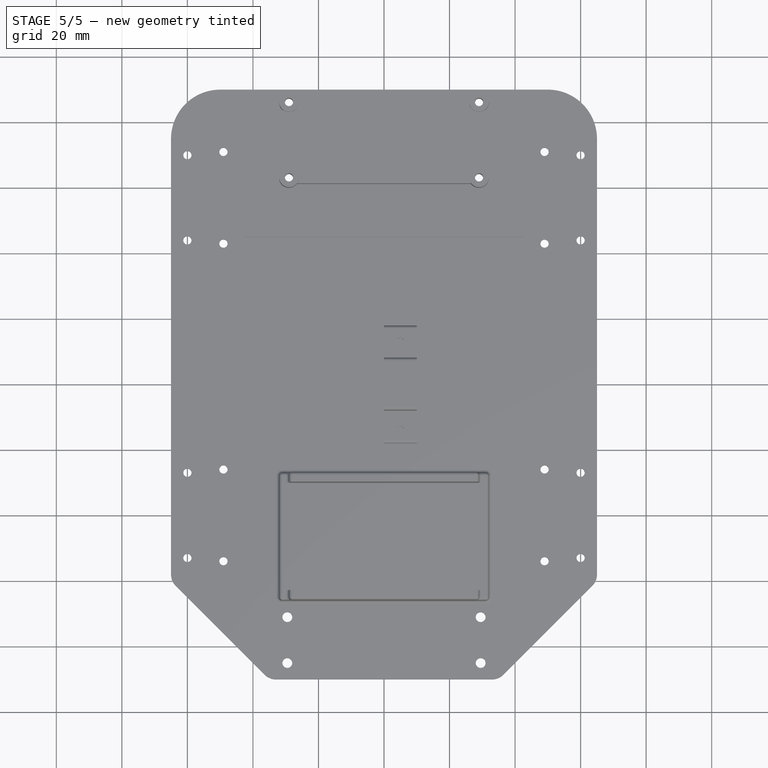
[diagram: stage 5 of 5 — top view after this stage's code; geometry added in this stage tinted green]
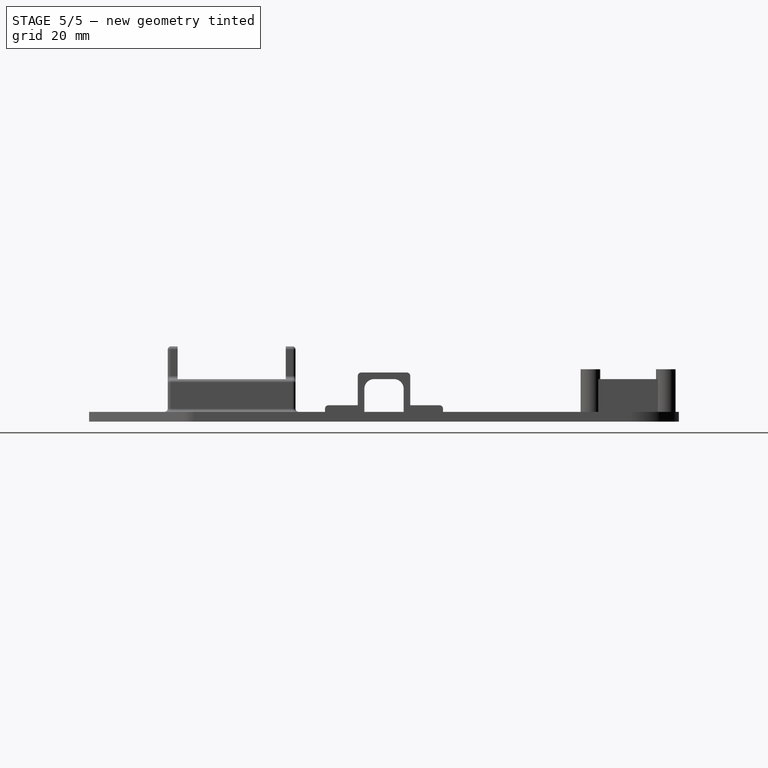
[diagram: stage 5 of 5 — right view after this stage's code; geometry added in this stage tinted green]
FEATURE [PartDesign::FeatureBase] BaseFeature
FEATURE [PartDesign::Fillet] Fillet006
  Base = -> BaseFeature [Edge23]
  BaseFeature = -> BaseFeature
  Radius = 1
FEATURE [PartDesign::Fillet] Fillet007
  Base = -> Fillet006 [Edge3]
  BaseFeature = -> Fillet006
  Radius = 1
FEATURE [PartDesign::Fillet] Fillet008
  Base = -> Fillet007 [Edge35]
  BaseFeature = -> Fillet007
  Radius = 1
FEATURE [PartDesign::Fillet] Fillet009
  Base = -> Fillet008 [Edge41]
  BaseFeature = -> Fillet008
  Radius = 1
FEATURE [PartDesign::Fillet] Fillet011
  Base = -> Fillet010 [Edge31]
  BaseFeature = -> Fillet010
  Placement = pos=(0,0,0) rot=(0.57735,0.57735,0.57735;2.0944rad)
  Radius = 3
FEATURE [PartDesign::Fillet] Fillet012
  Base = -> Fillet011 [Edge30,Edge38,Edge40,Edge32]
  BaseFeature = -> Fillet011
  Placement = pos=(0,0,0) rot=(0.57735,0.57735,0.57735;2.0944rad)
  Radius = 1
FEATURE [Sketcher::SketchObject] Sketch001
  ExternalGeometry = -> [Fillet009]
  MapMode = 5
  Placement = pos=(0,0,5) rot=(0,0,1;0rad)
  Support = -> [Fillet009]
  sketch-geometry (2):
    g0: Circle CenterX=5 CenterY=-13 CenterZ=0 NormalX=0 NormalY=0 NormalZ=1 AngleXU=0 Radius=1.25
    g1: Circle CenterX=5 CenterY=13 CenterZ=0 NormalX=0 NormalY=0 NormalZ=1 AngleXU=0 Radius=1.25
  constraints (6):
    c: Radius(g0) = 1.25
    c: DistanceX(g0,g-3) = 5
    c: DistanceY(g0,g-3) = 5
    c: Radius(g1) = 1.25
    c: DistanceX(g-4,g1) = 5
    c: DistanceY(g-4,g1) = 5
FEATURE [PartDesign::Pocket] Pocket
  BaseFeature = -> Fillet009
  Length = 5
  Length2 = 100
  Profile = -> Sketch001
  Type = 1
FEATURE [PartDesign::Body] Body001  label="Outer Bracket"
  Group = -> [BaseFeature,Fillet006,Fillet007,Fillet008,Fillet009,Sketch001,Pocket]
  Origin = -> Origin001
  Placement = pos=(-65.1769,-34.7311,0) rot=(0,0,1;0rad)
  Tip = -> Pocket
FEATURE [Sketcher::SketchObject] Sketch002
  ExternalGeometry = -> [Fillet012]
  MapMode = 5
  Placement = pos=(-3e-16,0,5) rot=(0,0,-1;1.5708rad)
  Support = -> [Fillet012]
  sketch-geometry (2):
    g0: Circle CenterX=14 CenterY=5 CenterZ=0 NormalX=0 NormalY=0 NormalZ=1 AngleXU=0 Radius=1.25
    g1: Circle CenterX=-14 CenterY=5 CenterZ=0 NormalX=0 NormalY=0 NormalZ=1 AngleXU=0 Radius=1.25
  constraints (6):
    c: Radius(g0) = 1.25
    c: DistanceX(g-3,g0) = 6
    c: DistanceY(g0,g-3) = 5
    c: Radius(g1) = 1.25
    c: DistanceX(g1,g-4) = 6
    c: DistanceY(g1,g-4) = 5
FEATURE [PartDesign::Pocket] Pocket001
  BaseFeature = -> Fillet012
  Length = 5
  Length2 = 100
  Placement = pos=(0,0,0) rot=(0.57735,0.57735,0.57735;2.0944rad)
  Profile = -> Sketch002
  Type = 1
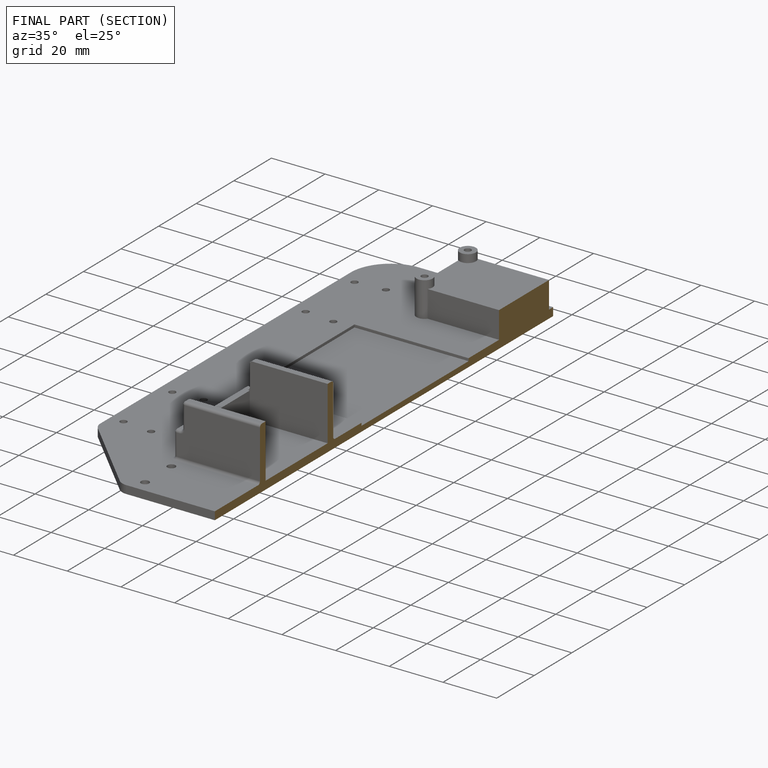
[diagram: finished part — half-section view (interior)]
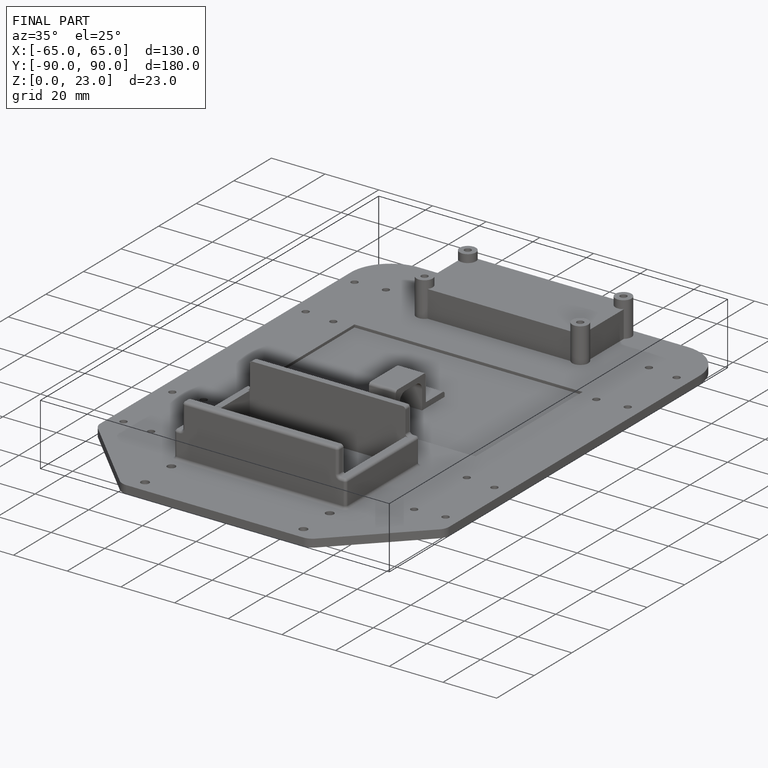
[diagram: finished part — iso view with bounding-box wireframe]
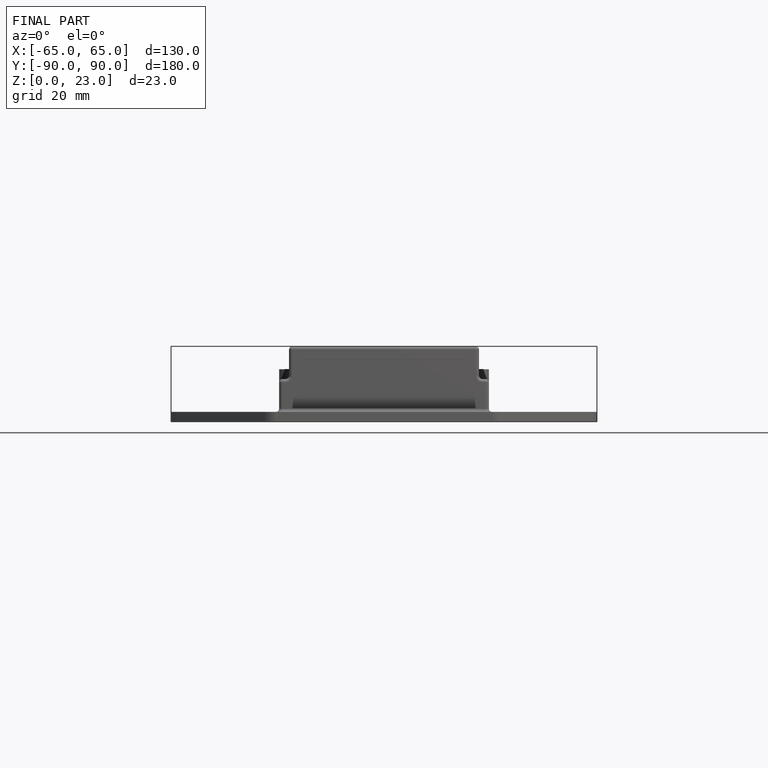
[diagram: finished part — front view with bounding-box wireframe]
